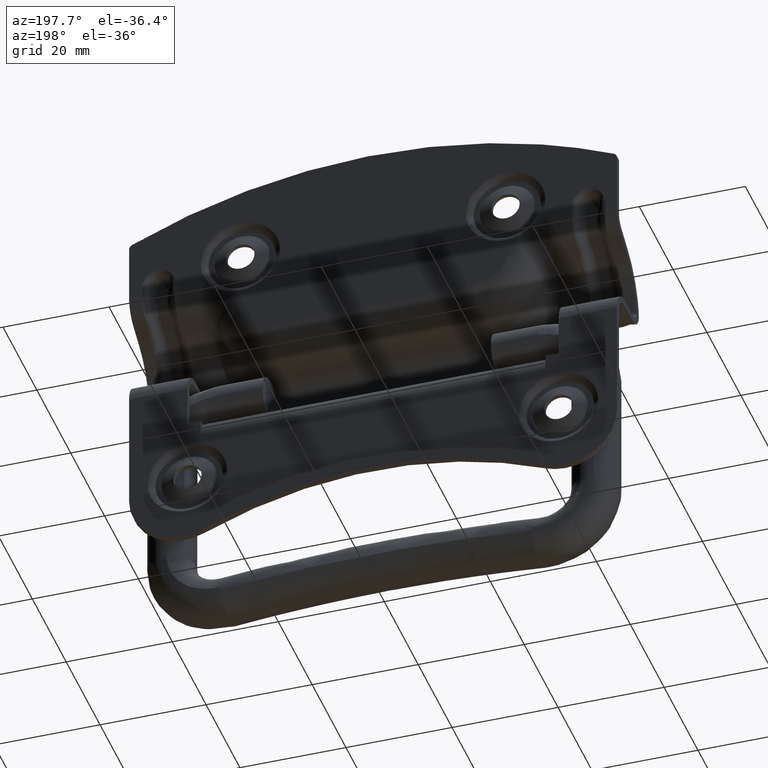
[diagram: clean part render]
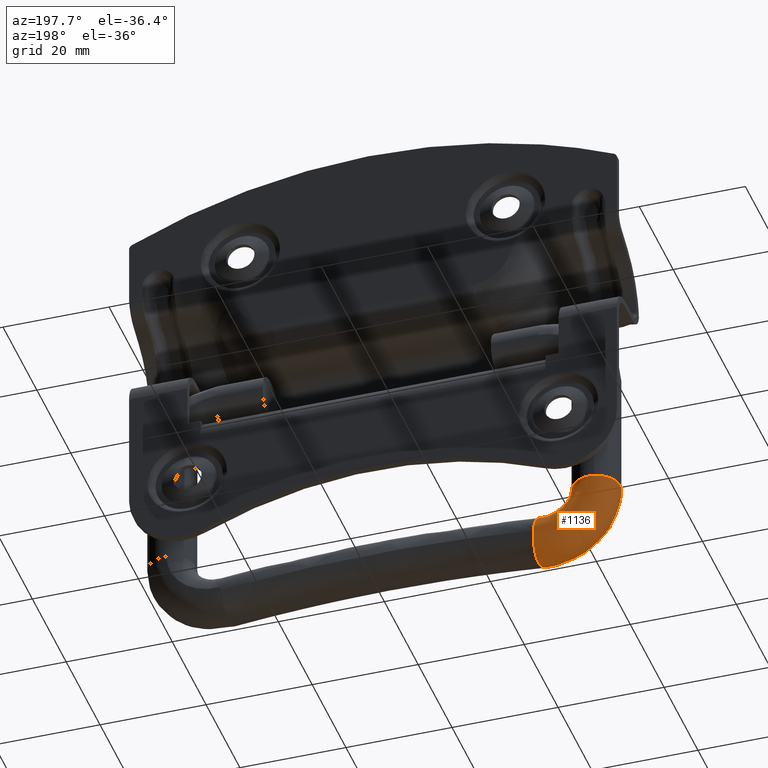
[diagram: same view with one face highlighted and labeled with its STEP entity id]
A machine part, auxiliary view. The second image highlights one B-rep face of the part: STEP entity #1136.
In plain terms, the highlighted face is a freeform B-spline surface patch.
Its self-contained STEP definition (entity closure, byte-faithful):
#288=CARTESIAN_POINT('',(-40.951820890330403,4.398185923832236,-33.500200369646343));
#289=VERTEX_POINT('',#288);
#290=CARTESIAN_POINT('',(-44.500000000000000,-9.860761E-032,-33.500200369646350));
#291=VERTEX_POINT('',#290);
#292=CARTESIAN_POINT('',(-40.951820890330403,4.398185923832236,-33.500200369646343));
#293=CARTESIAN_POINT('',(-41.418420261969949,4.297475289008015,-33.500200369646308));
#294=CARTESIAN_POINT('',(-42.108633211248417,4.027544383426217,-33.500200369646322));
#295=CARTESIAN_POINT('',(-42.916522179076850,3.455310120776322,-33.500200369646343));
#296=CARTESIAN_POINT('',(-43.503371640888282,2.867916672322077,-33.500200369646372));
#297=CARTESIAN_POINT('',(-43.969005904985707,2.178445057548997,-33.500200369646258));
#298=CARTESIAN_POINT('',(-44.382407967445232,1.209021893843518,-33.500200369646379));
#299=CARTESIAN_POINT('',(-44.500267698044340,0.477348553423601,-33.500200369646443));
#300=CARTESIAN_POINT('',(-44.500000000000000,-9.860761E-032,-33.500200369646350));
#301=B_SPLINE_CURVE_WITH_KNOTS('',3,(#292,#293,#294,#295,#296,#297,#298,#299,#300),.UNSPECIFIED.,.F.,.U.,(4,1,1,1,1,1,4),(0.000000123439960,1.431944170283286,2.195657201619604,2.959374225121781,3.913976232928854,4.677689264316443,6.109633311146133),.UNSPECIFIED.);
#302=EDGE_CURVE('',#289,#291,#301,.T.);
#304=CARTESIAN_POINT('',(-42.917642413722930,-3.425983471303529,-33.500200399629023));
#305=VERTEX_POINT('',#304);
#306=CARTESIAN_POINT('',(-44.500000000000000,-9.860761E-032,-33.500200369646350));
#307=CARTESIAN_POINT('',(-44.500361374266738,-0.507098824791121,-33.500200369639551));
#308=CARTESIAN_POINT('',(-44.340560491348803,-1.439817534680864,-33.500200372667280));
#309=CARTESIAN_POINT('',(-43.735147371901100,-2.602847661313574,-33.500200384138992));
#310=CARTESIAN_POINT('',(-43.195611381339589,-3.189319176449855,-33.500200394361840));
#311=CARTESIAN_POINT('',(-42.917642413722930,-3.425983471303529,-33.500200399629023));
#312=B_SPLINE_CURVE_WITH_KNOTS('',3,(#306,#307,#308,#309,#310,#311),.UNSPECIFIED.,.F.,.U.,(4,1,1,4),(0.000000065524013,1.521158766998033,2.798922428714008,3.894156154534184),.UNSPECIFIED.);
#313=EDGE_CURVE('',#291,#305,#312,.T.);
#315=CARTESIAN_POINT('',(-39.492146254285032,-4.471250895774388,-33.500200367193173));
#316=VERTEX_POINT('',#315);
#326=CARTESIAN_POINT('',(-35.500000000000007,-9.860761E-032,-33.500200369646350));
#327=VERTEX_POINT('',#326);
#328=CARTESIAN_POINT('',(-39.492146254285032,-4.471250895774388,-33.500200367193173));
#329=CARTESIAN_POINT('',(-38.914906099421721,-4.406220617196524,-33.500200367547897));
#330=CARTESIAN_POINT('',(-38.019287739821060,-4.121695328518954,-33.500200368098312));
#331=CARTESIAN_POINT('',(-37.035811464729747,-3.427836637320536,-33.500200368702508));
#332=CARTESIAN_POINT('',(-36.426753396867667,-2.776197463295943,-33.500200369076978));
#333=CARTESIAN_POINT('',(-35.982849113908422,-2.082752406501328,-33.500200369349628));
#334=CARTESIAN_POINT('',(-35.607119691304057,-1.161505447514666,-33.500200369580412));
#335=CARTESIAN_POINT('',(-35.499805932789492,-0.444165704182695,-33.500200369646727));
#336=CARTESIAN_POINT('',(-35.500000000000007,-9.860761E-032,-33.500200369646350));
#337=B_SPLINE_CURVE_WITH_KNOTS('',3,(#328,#329,#330,#331,#332,#333,#334,#335,#336),.UNSPECIFIED.,.F.,.U.,(4,1,1,1,1,1,4),(0.000000087958535,1.742444320822023,2.767442315214225,3.587359476511693,4.407339454728546,5.227337960677966,6.559787206443978),.UNSPECIFIED.);
#338=EDGE_CURVE('',#316,#327,#337,.T.);
#340=CARTESIAN_POINT('',(-36.761880508735800,3.124832202204953,-33.500200369646343));
#341=VERTEX_POINT('',#340);
#342=CARTESIAN_POINT('',(-35.500000000000007,-9.860761E-032,-33.500200369646350));
#343=CARTESIAN_POINT('',(-35.499880175916672,0.395807460236390,-33.500200369646350));
#344=CARTESIAN_POINT('',(-35.581257396981343,1.007400294115331,-33.500200369646393));
#345=CARTESIAN_POINT('',(-35.961619346289289,2.097362987380712,-33.500200369646308));
#346=CARTESIAN_POINT('',(-36.386690960776512,2.736731224593266,-33.500200369646322));
#347=CARTESIAN_POINT('',(-36.761880508735800,3.124832202204953,-33.500200369646343));
#348=B_SPLINE_CURVE_WITH_KNOTS('',3,(#342,#343,#344,#345,#346,#347),.UNSPECIFIED.,.F.,.U.,(4,1,1,4),(0.000000023966494,1.187403574151396,1.835077125112244,3.454263826064819),.UNSPECIFIED.);
#349=EDGE_CURVE('',#327,#341,#348,.T.);
#434=CARTESIAN_POINT('',(-40.000002609812903,4.499999999999243,-33.500200369646343));
#435=VERTEX_POINT('',#434);
#436=CARTESIAN_POINT('',(-40.000002609812903,4.499999999999243,-33.500200369646343));
#437=CARTESIAN_POINT('',(-40.319693439214667,4.500035816729088,-33.500200369646443));
#438=CARTESIAN_POINT('',(-40.639370345879300,4.465832183397450,-33.500200369646294));
#439=CARTESIAN_POINT('',(-40.951820890330403,4.398185923832236,-33.500200369646343));
#440=B_SPLINE_CURVE_WITH_KNOTS('',3,(#436,#437,#438,#439),.UNSPECIFIED.,.F.,.U.,(4,4),(2.915598E-009,0.959069389585852),.UNSPECIFIED.);
#441=EDGE_CURVE('',#435,#289,#440,.T.);
#463=CARTESIAN_POINT('',(-36.761880508735800,3.124832202204953,-33.500200369646343));
#464=CARTESIAN_POINT('',(-37.166757158648828,3.545279931637221,-33.500200369646208));
#465=CARTESIAN_POINT('',(-37.938405237279213,4.081814964269745,-33.500200369646649));
#466=CARTESIAN_POINT('',(-39.096421475566117,4.441365443104818,-33.500200369646024));
#467=CARTESIAN_POINT('',(-39.717629110653270,4.500018209447825,-33.500200369646457));
#468=CARTESIAN_POINT('',(-40.000002609812903,4.499999999999243,-33.500200369646343));
#469=B_SPLINE_CURVE_WITH_KNOTS('',3,(#463,#464,#465,#466,#467,#468),.UNSPECIFIED.,.F.,.U.,(4,1,1,4),(0.000000050977240,1.750767980464013,2.767297014832098,3.614428255128028),.UNSPECIFIED.);
#470=EDGE_CURVE('',#341,#435,#469,.T.);
#1002=CARTESIAN_POINT('',(-28.414786441203468,-3.511228822940097,-45.639961210248160));
#1003=CARTESIAN_POINT('',(-43.928544542477042,-3.511228822940099,-48.304717062148491));
#1004=CARTESIAN_POINT('',(-42.784997506760874,-3.511228822940097,-32.605356745493111));
#1005=CARTESIAN_POINT('',(-28.406311721495374,-3.468595837090470,-45.689299595764304));
#1006=CARTESIAN_POINT('',(-43.983120799477234,-3.468595837090471,-48.364885541704695));
#1007=CARTESIAN_POINT('',(-42.834926162770834,-3.468595837090471,-32.601719924283465));
#1008=CARTESIAN_POINT('',(-28.168787641407633,-2.273705493324761,-47.072124637345816));
#1009=CARTESIAN_POINT('',(-45.512749587815776,-2.273705493324760,-50.051249604366781));
#1010=CARTESIAN_POINT('',(-44.234294932153645,-2.273705493324762,-32.499789401266938));
#1011=CARTESIAN_POINT('',(-28.134833696320630,-0.507853731930667,-47.269798765836171));
#1012=CARTESIAN_POINT('',(-45.731409236402094,-0.507853731930667,-50.292314479806805));
#1013=CARTESIAN_POINT('',(-44.434333978024554,-0.507853731930667,-32.485218485425840));
#1014=CARTESIAN_POINT('',(-28.048860110792290,3.963397165409369,-47.770322447221261));
#1015=CARTESIAN_POINT('',(-46.285069612277432,3.963397165409369,-50.902706339527391));
#1016=CARTESIAN_POINT('',(-44.940845783209831,3.963397165409368,-32.448323983886155));
#1017=CARTESIAN_POINT('',(-28.805789610905858,4.471250897340036,-43.363606854081432));
#1018=CARTESIAN_POINT('',(-41.410527402962288,4.471250897340038,-45.528688233705012));
#1019=CARTESIAN_POINT('',(-40.481409490720083,4.471250897340036,-32.773150922715743));
#1020=CARTESIAN_POINT('',(-29.562719111019423,4.979104629270704,-38.956891260941575));
#1021=CARTESIAN_POINT('',(-36.535985193647150,4.979104629270704,-40.154670127882589));
#1022=CARTESIAN_POINT('',(-36.021973198230349,4.979104629270704,-33.097977861545324));
#1023=CARTESIAN_POINT('',(-29.648692696547759,0.507853731930668,-38.456367579556456));
#1024=CARTESIAN_POINT('',(-35.982324817771804,0.507853731930668,-39.544278268161960));
#1025=CARTESIAN_POINT('',(-35.515461393045072,0.507853731930668,-33.134872363085002));
#1026=CARTESIAN_POINT('',(-29.734666282076077,-3.963397165409367,-37.955843898171331));
#1027=CARTESIAN_POINT('',(-35.428664441896444,-3.963397165409369,-38.933886408441325));
#1028=CARTESIAN_POINT('',(-35.008949587859789,-3.963397165409368,-33.171766864624693));
#1029=CARTESIAN_POINT('',(-28.968470394972762,-4.477468080332050,-42.416506829912336));
#1030=CARTESIAN_POINT('',(-40.362881157889731,-4.477468080332050,-44.373693641852284));
#1031=CARTESIAN_POINT('',(-39.522978629655995,-4.477468080332051,-32.842963370357054));
#1032=CARTESIAN_POINT('',(-28.959297510451375,-4.483622528845497,-42.469909812948956));
#1033=CARTESIAN_POINT('',(-40.421953519019780,-4.483622528845497,-44.438818924316720));
#1034=CARTESIAN_POINT('',(-39.577020510881873,-4.483622528845496,-32.839026940347559));
#1042=(BOUNDED_SURFACE()B_SPLINE_SURFACE(2,2,((#1002,#1005,#1008,#1011,#1014,#1017,#1020,#1023,#1026,#1029,#1032),(#1003,#1006,#1009,#1012,#1015,#1018,#1021,#1024,#1027,#1030,#1033),(#1004,#1007,#1010,#1013,#1016,#1019,#1022,#1025,#1028,#1031,#1034)),.UNSPECIFIED.,.F.,.F.,.U.)B_SPLINE_SURFACE_WITH_KNOTS((3,3),(3,1,2,2,2,1,3),(0.0,27.230530612357871),(0.0,0.131541049479639,3.712828846141233,11.173845089186219,18.634861332231210,26.095877575276191,26.225707804164379),.UNSPECIFIED.)GEOMETRIC_REPRESENTATION_ITEM()RATIONAL_B_SPLINE_SURFACE(((0.785236535103607,0.785426596279501,0.790791192496276,0.920154568518306,0.650647535139076,0.920154568518306,0.650647535139076,0.920154568518306,0.650647535139076,0.924844299607314,0.929534030696322),(0.484281954319310,0.484399171480748,0.487707699578783,0.567490472993709,0.401276361712613,0.567490472993709,0.401276361712613,0.567490472993709,0.401276361712613,0.570382788920803,0.573275104847898),(0.786437188150499,0.786627539936316,0.792000338800962,0.921561515771667,0.651642397082699,0.921561515771667,0.651642397082699,0.921561515771667,0.651642397082699,0.926258417617089,0.930955319462512)))REPRESENTATION_ITEM('')SURFACE());
#1043=ORIENTED_EDGE('',*,*,#313,.F.);
#1044=ORIENTED_EDGE('',*,*,#302,.F.);
#1045=ORIENTED_EDGE('',*,*,#441,.F.);
#1046=ORIENTED_EDGE('',*,*,#470,.F.);
#1047=ORIENTED_EDGE('',*,*,#349,.F.);
#1048=ORIENTED_EDGE('',*,*,#338,.F.);
#1049=CARTESIAN_POINT('',(-29.626564545512281,-4.471250896667150,-42.449826334269943));
#1050=VERTEX_POINT('',#1049);
#1051=CARTESIAN_POINT('',(-29.626564545512281,-4.471250896667150,-42.449826334269943));
#1052=CARTESIAN_POINT('',(-30.404089140151910,-4.471250896720215,-42.525912149005293));
#1053=CARTESIAN_POINT('',(-31.979028419995512,-4.471250896795102,-42.473647940040607));
#1054=CARTESIAN_POINT('',(-34.052908463743513,-4.471250896805509,-41.846428778263501));
#1055=CARTESIAN_POINT('',(-35.856358817200942,-4.471250896736968,-40.809630166036357));
#1056=CARTESIAN_POINT('',(-37.138053200643590,-4.471250896620962,-39.646910127627571));
#1057=CARTESIAN_POINT('',(-38.197637294052988,-4.471250896454481,-38.238691029248187));
#1058=CARTESIAN_POINT('',(-38.907933909086893,-4.471250896270653,-36.837469003428943));
#1059=CARTESIAN_POINT('',(-39.384858872260693,-4.471250896034044,-35.179807744507869));
#1060=CARTESIAN_POINT('',(-39.492221289901089,-4.471250895866861,-34.086117369726637));
#1061=CARTESIAN_POINT('',(-39.492146254285032,-4.471250895774388,-33.500200367193173));
#1062=B_SPLINE_CURVE_WITH_KNOTS('',3,(#1051,#1052,#1053,#1054,#1055,#1056,#1057,#1058,#1059,#1060,#1061),.UNSPECIFIED.,.F.,.U.,(4,1,1,1,1,1,1,1,4),(0.000000163869789,2.343701995722020,4.687439444322653,6.445220307923350,8.554542348971015,9.843561106136761,11.718564530287590,13.242002880408320,14.999751229468609),.UNSPECIFIED.);
#1063=EDGE_CURVE('',#1050,#316,#1062,.T.);
#1064=ORIENTED_EDGE('',*,*,#1063,.F.);
#1065=CARTESIAN_POINT('',(-30.014331210190779,-9.860761E-032,-38.476557051657991));
#1066=VERTEX_POINT('',#1065);
#1067=CARTESIAN_POINT('',(-29.626564545512281,-4.471250896667150,-42.449826334269943));
#1068=CARTESIAN_POINT('',(-29.652942188239582,-4.440431399439891,-42.179546607525509));
#1069=CARTESIAN_POINT('',(-29.708412415974959,-4.322104014127392,-41.611168368600843));
#1070=CARTESIAN_POINT('',(-29.803767739055079,-3.909914930158813,-40.634105647804553));
#1071=CARTESIAN_POINT('',(-29.896714754529260,-3.167656147096095,-39.681719731811782));
#1072=CARTESIAN_POINT('',(-29.962403456896698,-2.209847654670495,-39.008637350021061));
#1073=CARTESIAN_POINT('',(-30.003926233491988,-1.161501865438285,-38.583172225129282));
#1074=CARTESIAN_POINT('',(-30.014349703193030,-0.444162774393291,-38.476367601764359));
#1075=CARTESIAN_POINT('',(-30.014331210190779,-9.860761E-032,-38.476557051657991));
#1076=B_SPLINE_CURVE_WITH_KNOTS('',3,(#1067,#1068,#1069,#1070,#1071,#1072,#1073,#1074,#1075),.UNSPECIFIED.,.F.,.U.,(4,1,1,1,1,1,4),(0.000000087951475,0.819942952189238,1.742444323273630,3.177406440176298,4.407339460937630,5.227337968043115,6.559787215687426),.UNSPECIFIED.);
#1077=EDGE_CURVE('',#1050,#1066,#1076,.T.);
#1078=ORIENTED_EDGE('',*,*,#1077,.T.);
#1079=CARTESIAN_POINT('',(-29.546747967903318,4.489044960894897,-43.267601979746090));
#1080=VERTEX_POINT('',#1079);
#1081=CARTESIAN_POINT('',(-30.014331210190779,-9.860761E-032,-38.476557051657991));
#1082=CARTESIAN_POINT('',(-30.014366819848789,0.519130124083102,-38.476192180859023));
#1083=CARTESIAN_POINT('',(-29.998970974362649,1.422508669713792,-38.633944171868350));
#1084=CARTESIAN_POINT('',(-29.945652715462352,2.491644630984946,-39.180264379211643));
#1085=CARTESIAN_POINT('',(-29.882910565494971,3.260756824430233,-39.823145543882909));
#1086=CARTESIAN_POINT('',(-29.807650855351451,3.871097281730435,-40.594286636973123));
#1087=CARTESIAN_POINT('',(-29.695126986268409,4.411718473937000,-41.747251207785681));
#1088=CARTESIAN_POINT('',(-29.602640095102679,4.529798967486927,-42.694908888287110));
#1089=CARTESIAN_POINT('',(-29.546747967903318,4.489044960894897,-43.267601979746090));
#1090=B_SPLINE_CURVE_WITH_KNOTS('',3,(#1081,#1082,#1083,#1084,#1085,#1086,#1087,#1088,#1089),.UNSPECIFIED.,.F.,.U.,(4,1,1,1,1,1,4),(0.000000222270704,1.557279448077507,2.710850903610824,3.576014307369630,4.556499835220942,5.652378301975578,7.382696705283094),.UNSPECIFIED.);
#1091=EDGE_CURVE('',#1066,#1080,#1090,.T.);
#1092=ORIENTED_EDGE('',*,*,#1091,.T.);
#1093=CARTESIAN_POINT('',(-29.140174215467809,-0.056547551695510,-47.433646655502102));
#1094=VERTEX_POINT('',#1093);
#1095=CARTESIAN_POINT('',(-29.546747967903318,4.489044960894897,-43.267601979746090));
#1096=CARTESIAN_POINT('',(-29.491741490817411,4.449937523872601,-43.831220330133192));
#1097=CARTESIAN_POINT('',(-29.396821871377711,4.190245118146512,-44.803810447821490));
#1098=CARTESIAN_POINT('',(-29.292720260920479,3.472312266466491,-45.870496446121997));
#1099=CARTESIAN_POINT('',(-29.231771998537951,2.790679832684526,-46.495015823248750));
#1100=CARTESIAN_POINT('',(-29.190208874873850,2.135679694712459,-46.920906935890017));
#1101=CARTESIAN_POINT('',(-29.151292374074231,1.221898475289564,-47.319687500685177));
#1102=CARTESIAN_POINT('',(-29.139535466134390,0.440095610277856,-47.440176646432263));
#1103=CARTESIAN_POINT('',(-29.140174215467809,-0.056547551695510,-47.433646655502102));
#1104=B_SPLINE_CURVE_WITH_KNOTS('',3,(#1095,#1096,#1097,#1098,#1099,#1100,#1101,#1102,#1103),.UNSPECIFIED.,.F.,.U.,(4,1,1,1,1,1,4),(0.000000057518765,1.702810236632901,2.979929713116655,3.831311118378232,4.469857685769702,5.321290102766732,6.811240773976907),.UNSPECIFIED.);
#1105=EDGE_CURVE('',#1080,#1094,#1104,.T.);
#1106=ORIENTED_EDGE('',*,*,#1105,.T.);
#1107=CARTESIAN_POINT('',(-29.293837907298101,-3.425983479298738,-45.859124913801061));
#1108=VERTEX_POINT('',#1107);
#1109=CARTESIAN_POINT('',(-29.140174215467809,-0.056547551695510,-47.433646655502102));
#1110=CARTESIAN_POINT('',(-29.140560705648060,-0.376320060245849,-47.429686494644614));
#1111=CARTESIAN_POINT('',(-29.148918243265030,-1.094835667623078,-47.344050667381168));
#1112=CARTESIAN_POINT('',(-29.192947836680091,-2.303193632997048,-46.892899533596342));
#1113=CARTESIAN_POINT('',(-29.252414336785399,-3.063473556372733,-46.283573390035762));
#1114=CARTESIAN_POINT('',(-29.293837907298101,-3.425983479298738,-45.859124913801061));
#1115=B_SPLINE_CURVE_WITH_KNOTS('',3,(#1109,#1110,#1111,#1112,#1113,#1114),.UNSPECIFIED.,.F.,.U.,(4,1,1,4),(0.000000060920046,0.959401509241919,2.158634300225264,3.837605854207550),.UNSPECIFIED.);
#1116=EDGE_CURVE('',#1094,#1108,#1115,.T.);
#1117=ORIENTED_EDGE('',*,*,#1116,.T.);
#1118=CARTESIAN_POINT('',(-29.293837907298101,-3.425983479298738,-45.859124913801061));
#1119=CARTESIAN_POINT('',(-30.099124550575581,-3.425983479299172,-45.937817785451251));
#1120=CARTESIAN_POINT('',(-31.562517030724049,-3.425983479215885,-45.936991849730170));
#1121=CARTESIAN_POINT('',(-33.426869072502029,-3.425983478916129,-45.604677561609513));
#1122=CARTESIAN_POINT('',(-35.177725885814219,-3.425983478492959,-45.050218245839140));
#1123=CARTESIAN_POINT('',(-36.738465046869877,-3.425983477963887,-44.296202089840293));
#1124=CARTESIAN_POINT('',(-38.426311758534382,-3.425983477184018,-43.125423953288838));
#1125=CARTESIAN_POINT('',(-39.875124837537342,-3.425983476292551,-41.740682328118332));
#1126=CARTESIAN_POINT('',(-41.058442782127003,-3.425983475281033,-40.124581933664679));
#1127=CARTESIAN_POINT('',(-41.985928354989873,-3.425983474192541,-38.352514015414272));
#1128=CARTESIAN_POINT('',(-42.714159244255683,-3.425983472891628,-36.197219565804552));
#1129=CARTESIAN_POINT('',(-42.917831759787163,-3.425983471871058,-34.471157581480249));
#1130=CARTESIAN_POINT('',(-42.917642413722930,-3.425983471303529,-33.500200399629023));
#1131=B_SPLINE_CURVE_WITH_KNOTS('',3,(#1118,#1119,#1120,#1121,#1122,#1123,#1124,#1125,#1126,#1127,#1128,#1129,#1130),.UNSPECIFIED.,.F.,.U.,(4,1,1,1,1,1,1,1,1,1,4),(0.000000085414339,2.427365162338770,4.369316821737378,5.663931298707500,7.929538701163056,9.547823455002227,11.813312509276241,13.917065825725309,15.535350356396441,17.800940476437070,20.713800451425261),.UNSPECIFIED.);
#1132=EDGE_CURVE('',#1108,#305,#1131,.T.);
#1133=ORIENTED_EDGE('',*,*,#1132,.T.);
#1134=EDGE_LOOP('',(#1043,#1044,#1045,#1046,#1047,#1048,#1064,#1078,#1092,#1106,#1117,#1133));
#1135=FACE_OUTER_BOUND('',#1134,.T.);
#1136=ADVANCED_FACE('',(#1135),#1042,.T.);